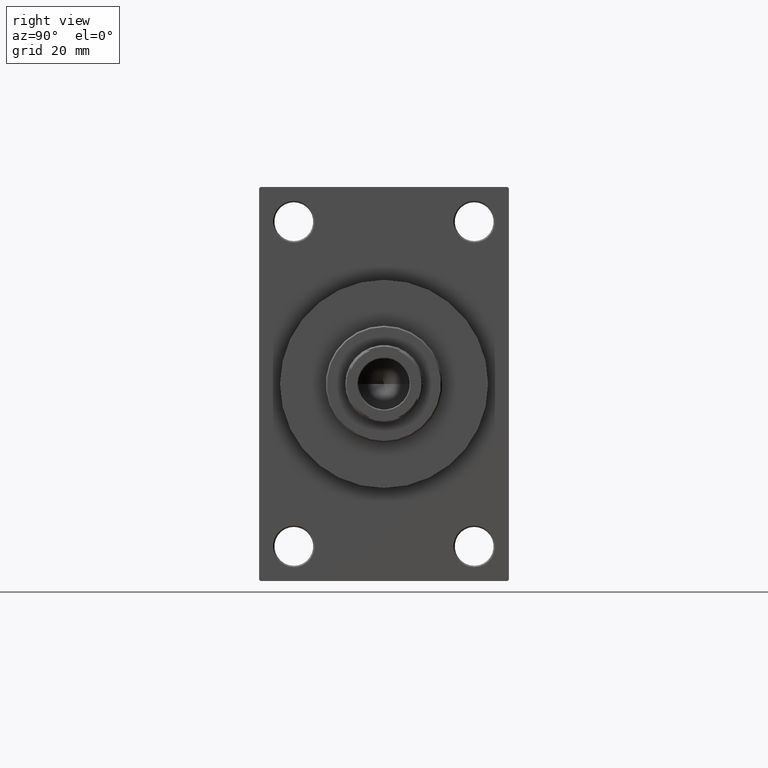
[diagram: clean part render]
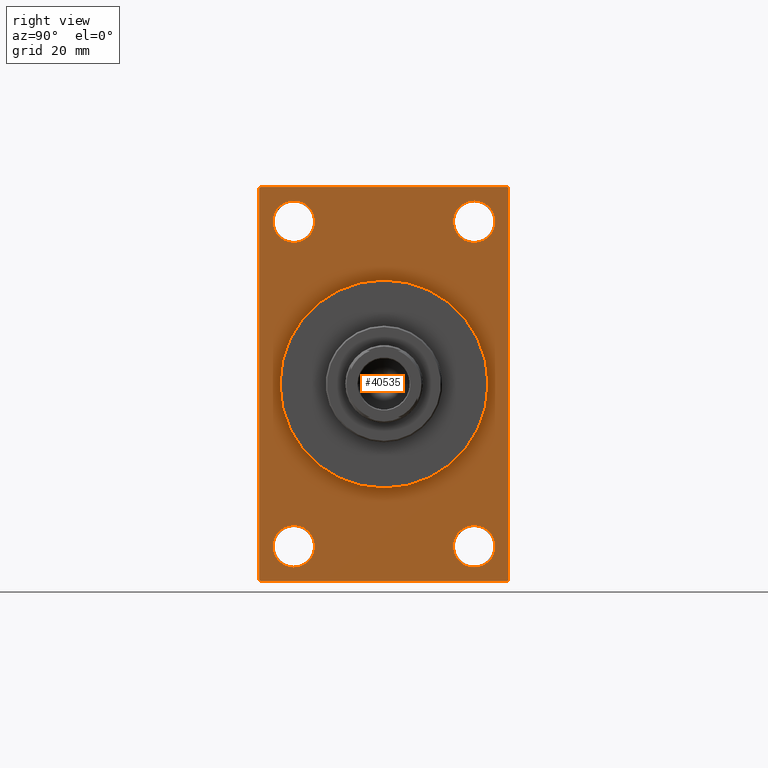
[diagram: same view with one face highlighted and labeled with its STEP entity id]
A machine part, right view. The second image highlights one B-rep face of the part: STEP entity #40535.
In plain terms, the highlighted planar face has unit normal (-1, 0, 0).
Its self-contained STEP definition (entity closure, byte-faithful):
#16 = VECTOR ( 'NONE', #14784, 1000.000000000000000 ) ;
#66 = PLANE ( 'NONE',  #546 ) ;
#443 = EDGE_LOOP ( 'NONE', ( #17987, #18547 ) ) ;
#546 = AXIS2_PLACEMENT_3D ( 'NONE', #15336, #14632, #15112 ) ;
#848 = ORIENTED_EDGE ( 'NONE', *, *, #38705, .T. ) ;
#971 = CARTESIAN_POINT ( 'NONE',  ( 140.0000000000000000, 45.00000000000002132, 71.00000000000000000 ) ) ;
#1033 = DIRECTION ( 'NONE',  ( 0.000000000000000000, 0.000000000000000000, 1.000000000000000000 ) ) ;
#1246 = VERTEX_POINT ( 'NONE', #3633 ) ;
#1526 = CARTESIAN_POINT ( 'NONE',  ( 140.0000000000000000, 0.000000000000000000, 37.50000000000000711 ) ) ;
#1704 = VERTEX_POINT ( 'NONE', #12638 ) ;
#1706 = ORIENTED_EDGE ( 'NONE', *, *, #19791, .T. ) ;
#2269 = CIRCLE ( 'NONE', #6893, 7.499999999999936939 ) ;
#2302 = CARTESIAN_POINT ( 'NONE',  ( 140.0000000000000000, 32.50000000000000711, -50.99999999999996447 ) ) ;
#2719 = ORIENTED_EDGE ( 'NONE', *, *, #19942, .F. ) ;
#2766 = AXIS2_PLACEMENT_3D ( 'NONE', #29306, #25487, #18545 ) ;
#2784 = CARTESIAN_POINT ( 'NONE',  ( 140.0000000000000000, -44.49999999999995026, 70.99999999999998579 ) ) ;
#2983 = CIRCLE ( 'NONE', #38098, 7.499999999999936939 ) ;
#3001 = DIRECTION ( 'NONE',  ( 0.000000000000000000, -1.000000000000000000, -1.541976423090495633E-16 ) ) ;
#3528 = AXIS2_PLACEMENT_3D ( 'NONE', #32217, #39863, #6905 ) ;
#3567 = VERTEX_POINT ( 'NONE', #22014 ) ;
#3633 = CARTESIAN_POINT ( 'NONE',  ( 140.0000000000000000, 44.50000000000002132, 71.00000000000000000 ) ) ;
#4345 = FACE_BOUND ( 'NONE', #28544, .T. ) ;
#4701 = VERTEX_POINT ( 'NONE', #18470 ) ;
#4823 = CARTESIAN_POINT ( 'NONE',  ( 140.0000000000000000, -44.49999999999997158, -71.00000000000000000 ) ) ;
#5158 = VECTOR ( 'NONE', #9253, 999.9999999999998863 ) ;
#6861 = CARTESIAN_POINT ( 'NONE',  ( 140.0000000000000000, 32.50000000000000711, 58.50000000000000711 ) ) ;
#6893 = AXIS2_PLACEMENT_3D ( 'NONE', #31206, #27149, #30505 ) ;
#6905 = DIRECTION ( 'NONE',  ( 0.000000000000000000, 0.000000000000000000, 1.000000000000000000 ) ) ;
#7247 = ORIENTED_EDGE ( 'NONE', *, *, #10568, .F. ) ;
#7356 = VERTEX_POINT ( 'NONE', #29562 ) ;
#8180 = ORIENTED_EDGE ( 'NONE', *, *, #17343, .T. ) ;
#8441 = CARTESIAN_POINT ( 'NONE',  ( 140.0000000000000000, 44.50000000000002132, 71.00000000000000000 ) ) ;
#9253 = DIRECTION ( 'NONE',  ( -0.000000000000000000, 0.7071067811865574537, 0.7071067811865376918 ) ) ;
#9437 = CIRCLE ( 'NONE', #18591, 7.500000000000034639 ) ;
#9521 = DIRECTION ( 'NONE',  ( -1.000000000000000000, 0.000000000000000000, -0.000000000000000000 ) ) ;
#10408 = VERTEX_POINT ( 'NONE', #26494 ) ;
#10473 = VERTEX_POINT ( 'NONE', #2784 ) ;
#10530 = CARTESIAN_POINT ( 'NONE',  ( 140.0000000000000000, 45.00000000000001421, -70.50000000000001421 ) ) ;
#10568 = EDGE_CURVE ( 'NONE', #7356, #28392, #18797, .T. ) ;
#10764 = ORIENTED_EDGE ( 'NONE', *, *, #17765, .T. ) ;
#11126 = CARTESIAN_POINT ( 'NONE',  ( 140.0000000000000000, -44.99999999999997158, -70.50000000000000000 ) ) ;
#11406 = AXIS2_PLACEMENT_3D ( 'NONE', #35926, #21589, #18000 ) ;
#11436 = EDGE_LOOP ( 'NONE', ( #11605, #8180 ) ) ;
#11605 = ORIENTED_EDGE ( 'NONE', *, *, #31707, .T. ) ;
#12009 = ORIENTED_EDGE ( 'NONE', *, *, #16274, .T. ) ;
#12038 = EDGE_CURVE ( 'NONE', #33452, #30788, #14390, .T. ) ;
#12260 = CARTESIAN_POINT ( 'NONE',  ( 140.0000000000000000, 32.50000000000000711, -58.50000000000000000 ) ) ;
#12638 = CARTESIAN_POINT ( 'NONE',  ( 140.0000000000000000, -32.50000000000000000, -66.00000000000001421 ) ) ;
#12812 = CIRCLE ( 'NONE', #28023, 7.500000000000034639 ) ;
#12950 = LINE ( 'NONE', #4823, #24479 ) ;
#14245 = CARTESIAN_POINT ( 'NONE',  ( 140.0000000000000000, 45.00000000000001421, -70.99999999999998579 ) ) ;
#14302 = EDGE_CURVE ( 'NONE', #3567, #28392, #19999, .T. ) ;
#14390 = LINE ( 'NONE', #21799, #39440 ) ;
#14632 = DIRECTION ( 'NONE',  ( -1.000000000000000000, 0.000000000000000000, -0.000000000000000000 ) ) ;
#14784 = DIRECTION ( 'NONE',  ( -0.000000000000000000, -0.7071067811865426878, -0.7071067811865524577 ) ) ;
#15112 = DIRECTION ( 'NONE',  ( -0.000000000000000000, 0.000000000000000000, 1.000000000000000000 ) ) ;
#15336 = CARTESIAN_POINT ( 'NONE',  ( 140.0000000000000000, 0.000000000000000000, 0.000000000000000000 ) ) ;
#15784 = AXIS2_PLACEMENT_3D ( 'NONE', #25247, #21905, #29775 ) ;
#16101 = ORIENTED_EDGE ( 'NONE', *, *, #43223, .T. ) ;
#16274 = EDGE_CURVE ( 'NONE', #7356, #1246, #27302, .T. ) ;
#16519 = CIRCLE ( 'NONE', #3528, 7.499999999999936939 ) ;
#16565 = VERTEX_POINT ( 'NONE', #25608 ) ;
#17343 = EDGE_CURVE ( 'NONE', #46848, #46636, #12812, .T. ) ;
#17515 = EDGE_CURVE ( 'NONE', #16565, #34798, #39591, .T. ) ;
#17723 = CARTESIAN_POINT ( 'NONE',  ( 140.0000000000000000, -44.99999999999997158, 70.49999999999998579 ) ) ;
#17765 = EDGE_CURVE ( 'NONE', #10408, #19317, #2983, .T. ) ;
#17987 = ORIENTED_EDGE ( 'NONE', *, *, #20598, .T. ) ;
#18000 = DIRECTION ( 'NONE',  ( 0.000000000000000000, 0.000000000000000000, -1.000000000000000000 ) ) ;
#18082 = CARTESIAN_POINT ( 'NONE',  ( 140.0000000000000000, 45.00000000000002132, 71.00000000000000000 ) ) ;
#18214 = FACE_BOUND ( 'NONE', #11436, .T. ) ;
#18470 = CARTESIAN_POINT ( 'NONE',  ( 140.0000000000000000, 32.50000000000000711, 51.00000000000007105 ) ) ;
#18545 = DIRECTION ( 'NONE',  ( 0.000000000000000000, 0.000000000000000000, 1.000000000000000000 ) ) ;
#18547 = ORIENTED_EDGE ( 'NONE', *, *, #28675, .T. ) ;
#18591 = AXIS2_PLACEMENT_3D ( 'NONE', #12260, #45198, #1033 ) ;
#18797 = LINE ( 'NONE', #18082, #21168 ) ;
#19317 = VERTEX_POINT ( 'NONE', #44308 ) ;
#19608 = CIRCLE ( 'NONE', #2766, 7.500000000000041744 ) ;
#19791 = EDGE_CURVE ( 'NONE', #10473, #33452, #36533, .T. ) ;
#19942 = EDGE_CURVE ( 'NONE', #3567, #24385, #36227, .T. ) ;
#19999 = LINE ( 'NONE', #41049, #5158 ) ;
#20598 = EDGE_CURVE ( 'NONE', #4701, #33098, #2269, .T. ) ;
#21168 = VECTOR ( 'NONE', #33370, 1000.000000000000000 ) ;
#21589 = DIRECTION ( 'NONE',  ( 1.000000000000000000, 0.000000000000000000, 0.000000000000000000 ) ) ;
#21799 = CARTESIAN_POINT ( 'NONE',  ( 140.0000000000000000, -44.99999999999997158, 70.99999999999998579 ) ) ;
#21905 = DIRECTION ( 'NONE',  ( 1.000000000000000000, 0.000000000000000000, 0.000000000000000000 ) ) ;
#21970 = EDGE_CURVE ( 'NONE', #30788, #24385, #12950, .T. ) ;
#22014 = CARTESIAN_POINT ( 'NONE',  ( 140.0000000000000000, 44.50000000000004263, -70.99999999999998579 ) ) ;
#22041 = FACE_OUTER_BOUND ( 'NONE', #27133, .T. ) ;
#22690 = CARTESIAN_POINT ( 'NONE',  ( 140.0000000000000000, -32.50000000000000000, 58.50000000000000711 ) ) ;
#23034 = VERTEX_POINT ( 'NONE', #32721 ) ;
#23078 = DIRECTION ( 'NONE',  ( 0.000000000000000000, 0.000000000000000000, 1.000000000000000000 ) ) ;
#24385 = VERTEX_POINT ( 'NONE', #37431 ) ;
#24479 = VECTOR ( 'NONE', #37340, 1000.000000000000000 ) ;
#24804 = EDGE_LOOP ( 'NONE', ( #36602, #27794 ) ) ;
#25247 = CARTESIAN_POINT ( 'NONE',  ( 140.0000000000000000, 0.000000000000000000, 0.000000000000000000 ) ) ;
#25340 = CIRCLE ( 'NONE', #26872, 7.499999999999936939 ) ;
#25487 = DIRECTION ( 'NONE',  ( -1.000000000000000000, 0.000000000000000000, -0.000000000000000000 ) ) ;
#25608 = CARTESIAN_POINT ( 'NONE',  ( 140.0000000000000000, 4.592425496802575156E-15, -37.50000000000000711 ) ) ;
#25868 = FACE_BOUND ( 'NONE', #443, .T. ) ;
#26494 = CARTESIAN_POINT ( 'NONE',  ( 140.0000000000000000, -32.50000000000000000, 65.99999999999994316 ) ) ;
#26715 = VECTOR ( 'NONE', #31119, 1000.000000000000114 ) ;
#26872 = AXIS2_PLACEMENT_3D ( 'NONE', #6861, #46266, #39816 ) ;
#27133 = EDGE_LOOP ( 'NONE', ( #36487, #30910, #2719, #35969, #7247, #12009, #848, #1706 ) ) ;
#27149 = DIRECTION ( 'NONE',  ( -1.000000000000000000, 0.000000000000000000, -0.000000000000000000 ) ) ;
#27302 = LINE ( 'NONE', #8441, #26715 ) ;
#27794 = ORIENTED_EDGE ( 'NONE', *, *, #17515, .F. ) ;
#28023 = AXIS2_PLACEMENT_3D ( 'NONE', #34062, #29787, #23078 ) ;
#28392 = VERTEX_POINT ( 'NONE', #10530 ) ;
#28544 = EDGE_LOOP ( 'NONE', ( #30866, #38938 ) ) ;
#28675 = EDGE_CURVE ( 'NONE', #33098, #4701, #25340, .T. ) ;
#28964 = DIRECTION ( 'NONE',  ( 0.000000000000000000, 0.000000000000000000, -1.000000000000000000 ) ) ;
#29306 = CARTESIAN_POINT ( 'NONE',  ( 140.0000000000000000, -32.50000000000000000, -58.49999999999999289 ) ) ;
#29562 = CARTESIAN_POINT ( 'NONE',  ( 140.0000000000000000, 45.00000000000002132, 70.50000000000000000 ) ) ;
#29633 = DIRECTION ( 'NONE',  ( -1.000000000000000000, 0.000000000000000000, -0.000000000000000000 ) ) ;
#29775 = DIRECTION ( 'NONE',  ( 0.000000000000000000, 0.000000000000000000, -1.000000000000000000 ) ) ;
#29787 = DIRECTION ( 'NONE',  ( -1.000000000000000000, 0.000000000000000000, -0.000000000000000000 ) ) ;
#29846 = CARTESIAN_POINT ( 'NONE',  ( 140.0000000000000000, 32.50000000000000711, 65.99999999999994316 ) ) ;
#29886 = DIRECTION ( 'NONE',  ( 0.000000000000000000, -1.000000000000000000, -1.541976423090495387E-16 ) ) ;
#29908 = FACE_BOUND ( 'NONE', #24804, .T. ) ;
#30505 = DIRECTION ( 'NONE',  ( 0.000000000000000000, 0.000000000000000000, 1.000000000000000000 ) ) ;
#30788 = VERTEX_POINT ( 'NONE', #11126 ) ;
#30866 = ORIENTED_EDGE ( 'NONE', *, *, #33970, .T. ) ;
#30910 = ORIENTED_EDGE ( 'NONE', *, *, #21970, .T. ) ;
#31119 = DIRECTION ( 'NONE',  ( 0.000000000000000000, -0.7071067811865474617, 0.7071067811865474617 ) ) ;
#31206 = CARTESIAN_POINT ( 'NONE',  ( 140.0000000000000000, 32.50000000000000711, 58.50000000000000711 ) ) ;
#31707 = EDGE_CURVE ( 'NONE', #46636, #46848, #9437, .T. ) ;
#31964 = CARTESIAN_POINT ( 'NONE',  ( 140.0000000000000000, -32.50000000000000000, -58.49999999999999289 ) ) ;
#32217 = CARTESIAN_POINT ( 'NONE',  ( 140.0000000000000000, -32.50000000000000000, 58.50000000000000711 ) ) ;
#32464 = CARTESIAN_POINT ( 'NONE',  ( 140.0000000000000000, -44.99999999999997158, 70.49999999999998579 ) ) ;
#32721 = CARTESIAN_POINT ( 'NONE',  ( 140.0000000000000000, -32.50000000000000000, -50.99999999999995737 ) ) ;
#33098 = VERTEX_POINT ( 'NONE', #29846 ) ;
#33310 = CIRCLE ( 'NONE', #15784, 37.50000000000000711 ) ;
#33370 = DIRECTION ( 'NONE',  ( 0.000000000000000000, -4.886545002751570165E-17, -1.000000000000000000 ) ) ;
#33452 = VERTEX_POINT ( 'NONE', #17723 ) ;
#33970 = EDGE_CURVE ( 'NONE', #1704, #23034, #43041, .T. ) ;
#34062 = CARTESIAN_POINT ( 'NONE',  ( 140.0000000000000000, 32.50000000000000711, -58.50000000000000000 ) ) ;
#34798 = VERTEX_POINT ( 'NONE', #1526 ) ;
#34842 = DIRECTION ( 'NONE',  ( 0.000000000000000000, 0.000000000000000000, 1.000000000000000000 ) ) ;
#35926 = CARTESIAN_POINT ( 'NONE',  ( 140.0000000000000000, 0.000000000000000000, 0.000000000000000000 ) ) ;
#35969 = ORIENTED_EDGE ( 'NONE', *, *, #14302, .T. ) ;
#36227 = LINE ( 'NONE', #14245, #40454 ) ;
#36487 = ORIENTED_EDGE ( 'NONE', *, *, #12038, .T. ) ;
#36533 = LINE ( 'NONE', #32464, #16 ) ;
#36602 = ORIENTED_EDGE ( 'NONE', *, *, #39417, .F. ) ;
#36765 = CARTESIAN_POINT ( 'NONE',  ( 140.0000000000000000, 32.50000000000000711, -66.00000000000002842 ) ) ;
#36975 = AXIS2_PLACEMENT_3D ( 'NONE', #31964, #9521, #34842 ) ;
#37032 = DIRECTION ( 'NONE',  ( 0.000000000000000000, 0.000000000000000000, 1.000000000000000000 ) ) ;
#37295 = LINE ( 'NONE', #971, #42443 ) ;
#37340 = DIRECTION ( 'NONE',  ( 0.000000000000000000, 0.7071067811865573427, -0.7071067811865378028 ) ) ;
#37431 = CARTESIAN_POINT ( 'NONE',  ( 140.0000000000000000, -44.49999999999994316, -71.00000000000000000 ) ) ;
#38098 = AXIS2_PLACEMENT_3D ( 'NONE', #22690, #29633, #37032 ) ;
#38705 = EDGE_CURVE ( 'NONE', #1246, #10473, #37295, .T. ) ;
#38938 = ORIENTED_EDGE ( 'NONE', *, *, #39400, .T. ) ;
#39400 = EDGE_CURVE ( 'NONE', #23034, #1704, #19608, .T. ) ;
#39417 = EDGE_CURVE ( 'NONE', #34798, #16565, #33310, .T. ) ;
#39440 = VECTOR ( 'NONE', #28964, 1000.000000000000000 ) ;
#39580 = EDGE_LOOP ( 'NONE', ( #16101, #10764 ) ) ;
#39591 = CIRCLE ( 'NONE', #11406, 37.50000000000000711 ) ;
#39816 = DIRECTION ( 'NONE',  ( 0.000000000000000000, 0.000000000000000000, 1.000000000000000000 ) ) ;
#39863 = DIRECTION ( 'NONE',  ( -1.000000000000000000, 0.000000000000000000, -0.000000000000000000 ) ) ;
#40454 = VECTOR ( 'NONE', #3001, 1000.000000000000000 ) ;
#40535 = ADVANCED_FACE ( 'NONE', ( #44233, #4345, #18214, #25868, #29908, #22041 ), #66, .F. ) ;
#41049 = CARTESIAN_POINT ( 'NONE',  ( 140.0000000000000000, 45.00000000000001421, -70.50000000000001421 ) ) ;
#42443 = VECTOR ( 'NONE', #29886, 1000.000000000000000 ) ;
#43041 = CIRCLE ( 'NONE', #36975, 7.500000000000041744 ) ;
#43223 = EDGE_CURVE ( 'NONE', #19317, #10408, #16519, .T. ) ;
#44233 = FACE_BOUND ( 'NONE', #39580, .T. ) ;
#44308 = CARTESIAN_POINT ( 'NONE',  ( 140.0000000000000000, -32.50000000000000000, 51.00000000000007105 ) ) ;
#45198 = DIRECTION ( 'NONE',  ( -1.000000000000000000, 0.000000000000000000, -0.000000000000000000 ) ) ;
#46266 = DIRECTION ( 'NONE',  ( -1.000000000000000000, 0.000000000000000000, -0.000000000000000000 ) ) ;
#46636 = VERTEX_POINT ( 'NONE', #36765 ) ;
#46848 = VERTEX_POINT ( 'NONE', #2302 ) ;